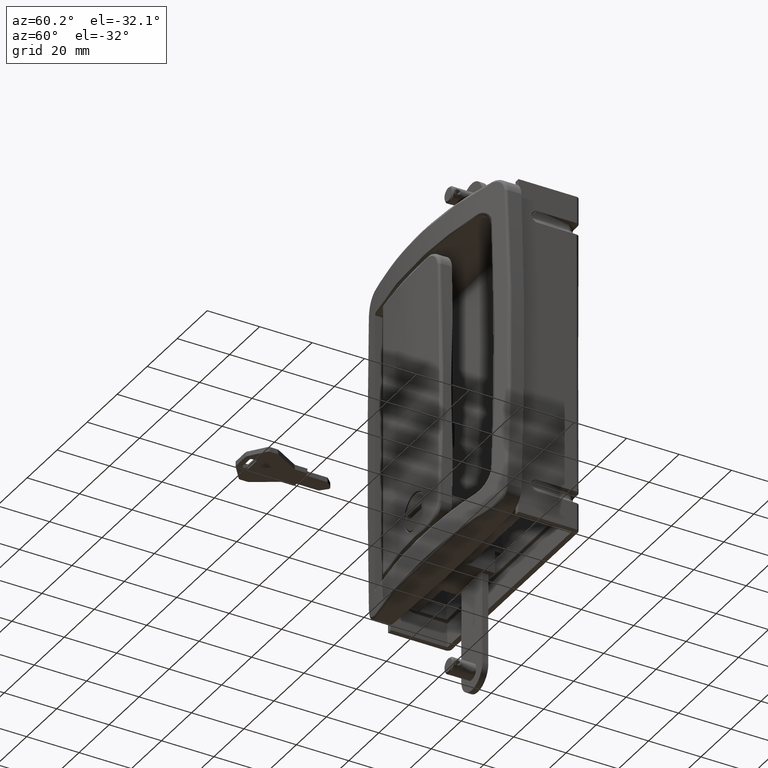
[diagram: clean part render]
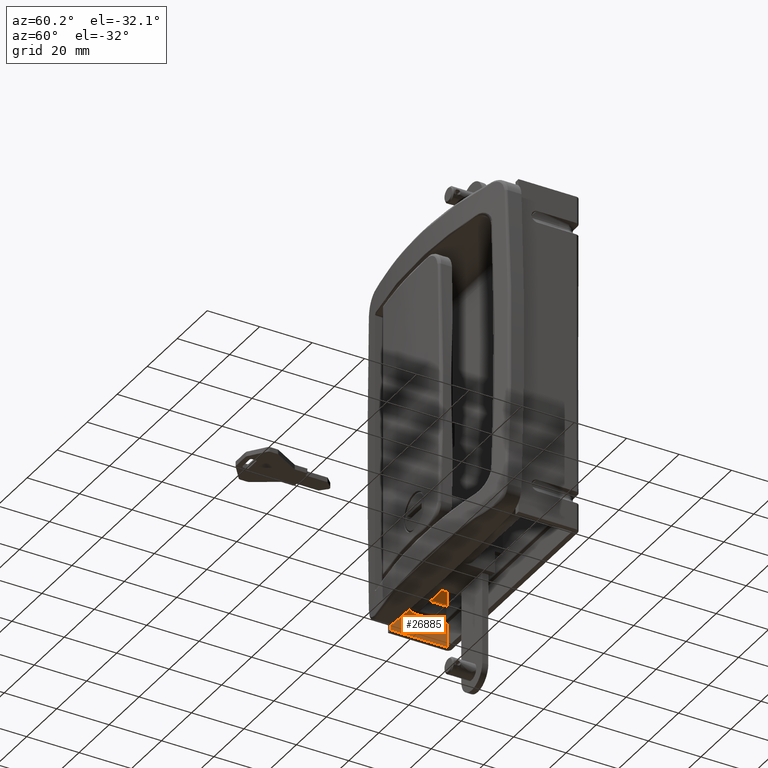
[diagram: same view with one face highlighted and labeled with its STEP entity id]
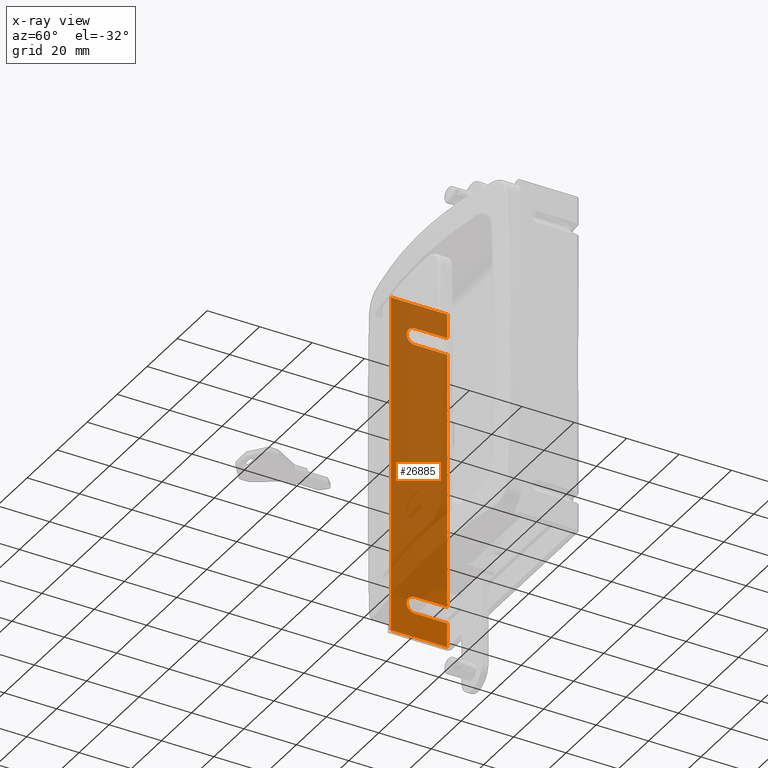
[diagram: x-ray of the same camera — body ghosted, the highlighted face saturated]
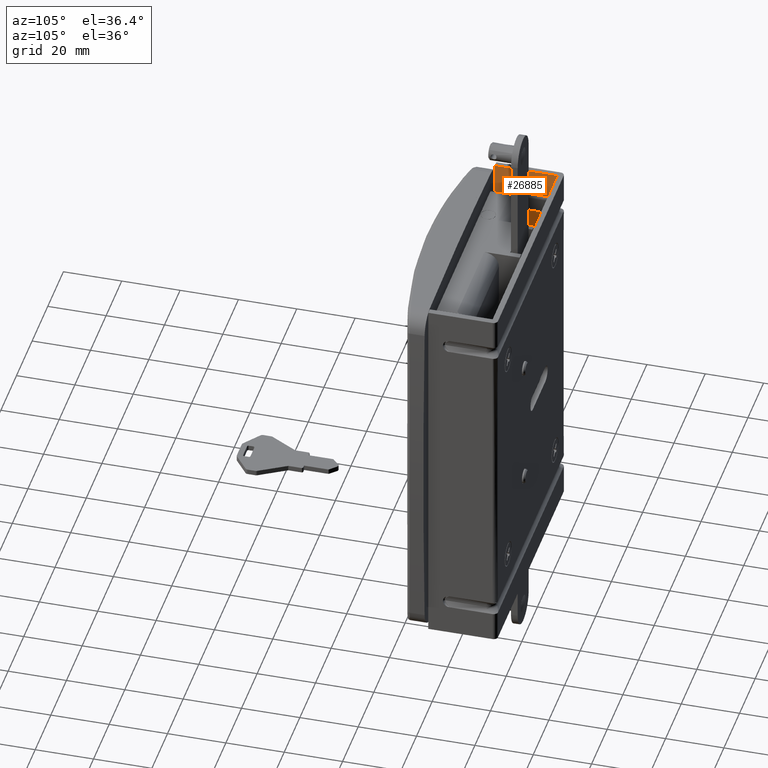
[diagram: same view with one face highlighted and labeled with its STEP entity id]
A machine part, auxiliary view. The second image highlights one B-rep face of the part: STEP entity #26885.
The next image is the same camera in x-ray: the body ghosted, the highlighted face saturated — about 89% of this face is hidden behind the body in this view.
A second angle (auxiliary view) of the same face is appended — the face is thin or edge-on in the first view.
In plain terms, the highlighted face is a freeform B-spline surface patch.
Its self-contained STEP definition (entity closure, byte-faithful):
#21775=CARTESIAN_POINT('',(5.500008000000000,22.0,-55.736068000000103));
#21776=VERTEX_POINT('',#21775);
#21865=CARTESIAN_POINT('',(5.500008000000000,9.735000000000001,-55.736068000000103));
#21866=VERTEX_POINT('',#21865);
#21877=CARTESIAN_POINT('',(5.500008000000000,22.0,-55.736068000000103));
#21878=CARTESIAN_POINT('',(5.500008000000000,9.735000000000001,-55.736068000000103));
#21879=QUASI_UNIFORM_CURVE('',1,(#21877,#21878),.UNSPECIFIED.,.F.,.U.);
#21880=EDGE_CURVE('',#21776,#21866,#21879,.T.);
#21905=CARTESIAN_POINT('',(5.500008000000000,22.0,-49.263931999999997));
#21906=VERTEX_POINT('',#21905);
#21957=CARTESIAN_POINT('',(5.500008000000000,6.500000000000000,-52.501068000000103));
#21958=VERTEX_POINT('',#21957);
#21969=CARTESIAN_POINT('',(5.500008000000000,9.735000000000001,-55.736068000000103));
#21970=CARTESIAN_POINT('',(5.500008000000003,9.337991631200776,-55.736354955588759));
#21971=CARTESIAN_POINT('',(5.500007999999996,8.517598911700189,-55.583284870001023));
#21972=CARTESIAN_POINT('',(5.500008000000011,7.605912412434482,-55.006083006775299));
#21973=CARTESIAN_POINT('',(5.500007999999985,6.971746233656388,-54.251866477310550));
#21974=CARTESIAN_POINT('',(5.500008000000045,6.594245894334842,-53.453828128411750));
#21975=CARTESIAN_POINT('',(5.500007999999952,6.499876621869602,-52.818663694237152));
#21976=CARTESIAN_POINT('',(5.500008000000000,6.500000000000000,-52.501068000000103));
#21977=B_SPLINE_CURVE_WITH_KNOTS('',3,(#21969,#21970,#21971,#21972,#21973,#21974,#21975,#21976),.UNSPECIFIED.,.F.,.U.,(4,1,1,1,1,4),(0.000000537161772,1.191008206630700,2.461504117493240,3.175982237945303,4.128863967174837,5.081653632977260),.UNSPECIFIED.);
#21978=EDGE_CURVE('',#21866,#21958,#21977,.T.);
#22009=CARTESIAN_POINT('',(5.500008000000000,9.735000000000001,-49.263931999999997));
#22010=VERTEX_POINT('',#22009);
#22029=CARTESIAN_POINT('',(5.500008000000000,22.0,-49.263931999999997));
#22030=CARTESIAN_POINT('',(5.500008000000000,9.735000000000001,-49.263931999999997));
#22031=QUASI_UNIFORM_CURVE('',1,(#22029,#22030),.UNSPECIFIED.,.F.,.U.);
#22032=EDGE_CURVE('',#21906,#22010,#22031,.T.);
#22053=CARTESIAN_POINT('',(5.500008000000000,6.500000000000000,-52.498932000000003));
#22054=VERTEX_POINT('',#22053);
#22065=CARTESIAN_POINT('',(5.500008000000000,6.500000000000000,-52.498932000000003));
#22066=CARTESIAN_POINT('',(5.500008000000000,6.500000000000000,-52.501068000000103));
#22067=QUASI_UNIFORM_CURVE('',1,(#22065,#22066),.UNSPECIFIED.,.F.,.U.);
#22068=EDGE_CURVE('',#22054,#21958,#22067,.T.);
#22097=CARTESIAN_POINT('',(5.500008000000000,6.500000000000000,-52.498932000000003));
#22098=CARTESIAN_POINT('',(5.500007999999993,6.499392807291947,-52.048875999174093));
#22099=CARTESIAN_POINT('',(5.500008000000010,6.634709969461950,-51.414179386136212));
#22100=CARTESIAN_POINT('',(5.500007999999993,7.057564979173719,-50.646267878522579));
#22101=CARTESIAN_POINT('',(5.500008000000013,7.537480066769327,-50.075687522866531));
#22102=CARTESIAN_POINT('',(5.500007999999990,8.412374108735374,-49.459279077436769));
#22103=CARTESIAN_POINT('',(5.500008000000011,9.231952330110660,-49.263014611697962));
#22104=CARTESIAN_POINT('',(5.500008000000000,9.735000000000001,-49.263931999999997));
#22105=B_SPLINE_CURVE_WITH_KNOTS('',3,(#22097,#22098,#22099,#22100,#22101,#22102,#22103,#22104),.UNSPECIFIED.,.F.,.U.,(4,1,1,1,1,4),(0.000000537162196,1.349819415601609,1.905671932194951,2.620150052646751,3.573034379582687,5.081653632977199),.UNSPECIFIED.);
#22106=EDGE_CURVE('',#22054,#22010,#22105,.T.);
#22187=CARTESIAN_POINT('',(5.500008000000000,9.735000000000001,49.263931999999997));
#22188=VERTEX_POINT('',#22187);
#22199=CARTESIAN_POINT('',(5.500008000000000,22.0,49.263931999999997));
#22200=VERTEX_POINT('',#22199);
#22201=CARTESIAN_POINT('',(5.500008000000000,22.0,49.263931999999997));
#22202=CARTESIAN_POINT('',(5.500008000000000,9.735000000000001,49.263931999999997));
#22203=QUASI_UNIFORM_CURVE('',1,(#22201,#22202),.UNSPECIFIED.,.F.,.U.);
#22204=EDGE_CURVE('',#22200,#22188,#22203,.T.);
#22295=CARTESIAN_POINT('',(5.500008000000000,6.500000000000000,52.498932000000003));
#22296=VERTEX_POINT('',#22295);
#22307=CARTESIAN_POINT('',(5.500008000000000,9.735000000000001,49.263931999999997));
#22308=CARTESIAN_POINT('',(5.500008000000004,9.523296283600496,49.263943167242047));
#22309=CARTESIAN_POINT('',(5.500007999999999,8.940991453282045,49.321115785367773));
#22310=CARTESIAN_POINT('',(5.500008000000003,7.988575940949517,49.688124001078940));
#22311=CARTESIAN_POINT('',(5.500008000000005,7.209047392386800,50.394843535714251));
#22312=CARTESIAN_POINT('',(5.500007999999981,6.646022985321461,51.361307574699822));
#22313=CARTESIAN_POINT('',(5.500008000000005,6.499394553783390,52.048885676722577));
#22314=CARTESIAN_POINT('',(5.500008000000000,6.500000000000000,52.498932000000003));
#22315=B_SPLINE_CURVE_WITH_KNOTS('',3,(#22307,#22308,#22309,#22310,#22311,#22312,#22313,#22314),.UNSPECIFIED.,.F.,.U.,(4,1,1,1,1,4),(0.000000537165807,0.635155690040750,1.746831379839632,3.017195305181958,3.731834754538992,5.081653632977256),.UNSPECIFIED.);
#22316=EDGE_CURVE('',#22188,#22296,#22315,.T.);
#22391=CARTESIAN_POINT('',(5.500008000000000,6.500000000000000,52.501068000000103));
#22392=VERTEX_POINT('',#22391);
#22403=CARTESIAN_POINT('',(5.500008000000000,6.500000000000000,52.498932000000003));
#22404=CARTESIAN_POINT('',(5.500008000000000,6.500000000000000,52.501068000000103));
#22405=QUASI_UNIFORM_CURVE('',1,(#22403,#22404),.UNSPECIFIED.,.F.,.U.);
#22406=EDGE_CURVE('',#22296,#22392,#22405,.T.);
#22493=CARTESIAN_POINT('',(5.500008000000000,9.735000000000001,55.736068000000103));
#22494=VERTEX_POINT('',#22493);
#22505=CARTESIAN_POINT('',(5.500008000000000,6.500000000000000,52.501068000000103));
#22506=CARTESIAN_POINT('',(5.500007999999996,6.499813871750412,52.845154812537352));
#22507=CARTESIAN_POINT('',(5.500008000000003,6.593805911878137,53.427279196775331));
#22508=CARTESIAN_POINT('',(5.500007999999998,6.937651497654652,54.177735091960820));
#22509=CARTESIAN_POINT('',(5.500008000000014,7.485513253517100,54.898695362684002));
#22510=CARTESIAN_POINT('',(5.500007999999951,8.412077016855665,55.550836110757217));
#22511=CARTESIAN_POINT('',(5.500008000000022,9.284985596778231,55.736646264708952));
#22512=CARTESIAN_POINT('',(5.500008000000000,9.735000000000001,55.736068000000103));
#22513=B_SPLINE_CURVE_WITH_KNOTS('',3,(#22505,#22506,#22507,#22508,#22509,#22510,#22511,#22512),.UNSPECIFIED.,.F.,.U.,(4,1,1,1,1,4),(0.000000537168692,1.032207831679992,1.746831379841523,2.461504117496404,3.731834754540316,5.081653632977209),.UNSPECIFIED.);
#22514=EDGE_CURVE('',#22392,#22494,#22513,.T.);
#22588=CARTESIAN_POINT('',(5.500008000000000,22.0,55.736068000000103));
#22589=VERTEX_POINT('',#22588);
#22603=CARTESIAN_POINT('',(5.500008000000000,22.0,55.736068000000103));
#22604=CARTESIAN_POINT('',(5.500008000000000,9.735000000000001,55.736068000000103));
#22605=QUASI_UNIFORM_CURVE('',1,(#22603,#22604),.UNSPECIFIED.,.F.,.U.);
#22606=EDGE_CURVE('',#22589,#22494,#22605,.T.);
#26458=CARTESIAN_POINT('',(5.500008000000000,0.500000000000114,65.0));
#26459=VERTEX_POINT('',#26458);
#26465=CARTESIAN_POINT('',(5.500008000000000,22.0,65.0));
#26466=VERTEX_POINT('',#26465);
#26467=CARTESIAN_POINT('',(5.500008000000000,22.0,65.0));
#26468=CARTESIAN_POINT('',(5.500008000000000,0.500000000000114,65.0));
#26469=QUASI_UNIFORM_CURVE('',1,(#26467,#26468),.UNSPECIFIED.,.F.,.U.);
#26470=EDGE_CURVE('',#26466,#26459,#26469,.T.);
#26526=CARTESIAN_POINT('',(5.500008000000000,22.0,-65.0));
#26527=VERTEX_POINT('',#26526);
#26533=CARTESIAN_POINT('',(5.500008000000000,0.500000000000114,-65.0));
#26534=VERTEX_POINT('',#26533);
#26535=CARTESIAN_POINT('',(5.500008000000000,22.0,-65.0));
#26536=CARTESIAN_POINT('',(5.500008000000000,0.500000000000114,-65.0));
#26537=QUASI_UNIFORM_CURVE('',1,(#26535,#26536),.UNSPECIFIED.,.F.,.U.);
#26538=EDGE_CURVE('',#26527,#26534,#26537,.T.);
#26568=CARTESIAN_POINT('',(5.500008000000000,0.500000000000114,-65.0));
#26569=CARTESIAN_POINT('',(5.500008000000000,0.500000000000114,65.0));
#26570=QUASI_UNIFORM_CURVE('',1,(#26568,#26569),.UNSPECIFIED.,.F.,.U.);
#26571=EDGE_CURVE('',#26534,#26459,#26570,.T.);
#26581=CARTESIAN_POINT('',(5.500008000000000,22.0,55.736068000000103));
#26582=CARTESIAN_POINT('',(5.500008000000000,22.0,65.0));
#26583=QUASI_UNIFORM_CURVE('',1,(#26581,#26582),.UNSPECIFIED.,.F.,.U.);
#26584=EDGE_CURVE('',#22589,#26466,#26583,.T.);
#26849=CARTESIAN_POINT('',(5.500008000000000,22.0,-65.0));
#26850=CARTESIAN_POINT('',(5.500008000000000,22.0,-55.736068000000103));
#26851=QUASI_UNIFORM_CURVE('',1,(#26849,#26850),.UNSPECIFIED.,.F.,.U.);
#26852=EDGE_CURVE('',#26527,#21776,#26851,.T.);
#26858=CARTESIAN_POINT('',(5.500008000000000,23.073924958328821,-71.493499748034765));
#26859=CARTESIAN_POINT('',(5.500008000000000,-0.573925535003646,-71.493499748034765));
#26860=CARTESIAN_POINT('',(5.500008000000000,23.073924958328821,71.493503234906484));
#26861=CARTESIAN_POINT('',(5.500008000000000,-0.573925535003646,71.493503234906484));
#26862=B_SPLINE_SURFACE_WITH_KNOTS('',1,1,((#26858,#26860),(#26859,#26861)),.UNSPECIFIED.,.F.,.F.,.U.,(2,2),(2,2),(0.0,23.647850493332470),(0.0,142.987002982941310),.UNSPECIFIED.);
#26863=ORIENTED_EDGE('',*,*,#22032,.F.);
#26864=CARTESIAN_POINT('',(5.500008000000000,22.0,-49.263931999999997));
#26865=CARTESIAN_POINT('',(5.500008000000000,22.0,49.263931999999997));
#26866=QUASI_UNIFORM_CURVE('',1,(#26864,#26865),.UNSPECIFIED.,.F.,.U.);
#26867=EDGE_CURVE('',#21906,#22200,#26866,.T.);
#26868=ORIENTED_EDGE('',*,*,#26867,.T.);
#26869=ORIENTED_EDGE('',*,*,#22204,.T.);
#26870=ORIENTED_EDGE('',*,*,#22316,.T.);
#26871=ORIENTED_EDGE('',*,*,#22406,.T.);
#26872=ORIENTED_EDGE('',*,*,#22514,.T.);
#26873=ORIENTED_EDGE('',*,*,#22606,.F.);
#26874=ORIENTED_EDGE('',*,*,#26584,.T.);
#26875=ORIENTED_EDGE('',*,*,#26470,.T.);
#26876=ORIENTED_EDGE('',*,*,#26571,.F.);
#26877=ORIENTED_EDGE('',*,*,#26538,.F.);
#26878=ORIENTED_EDGE('',*,*,#26852,.T.);
#26879=ORIENTED_EDGE('',*,*,#21880,.T.);
#26880=ORIENTED_EDGE('',*,*,#21978,.T.);
#26881=ORIENTED_EDGE('',*,*,#22068,.F.);
#26882=ORIENTED_EDGE('',*,*,#22106,.T.);
#26883=EDGE_LOOP('',(#26863,#26868,#26869,#26870,#26871,#26872,#26873,#26874,#26875,#26876,#26877,#26878,#26879,#26880,#26881,#26882));
#26884=FACE_OUTER_BOUND('',#26883,.T.);
#26885=ADVANCED_FACE('',(#26884),#26862,.F.);